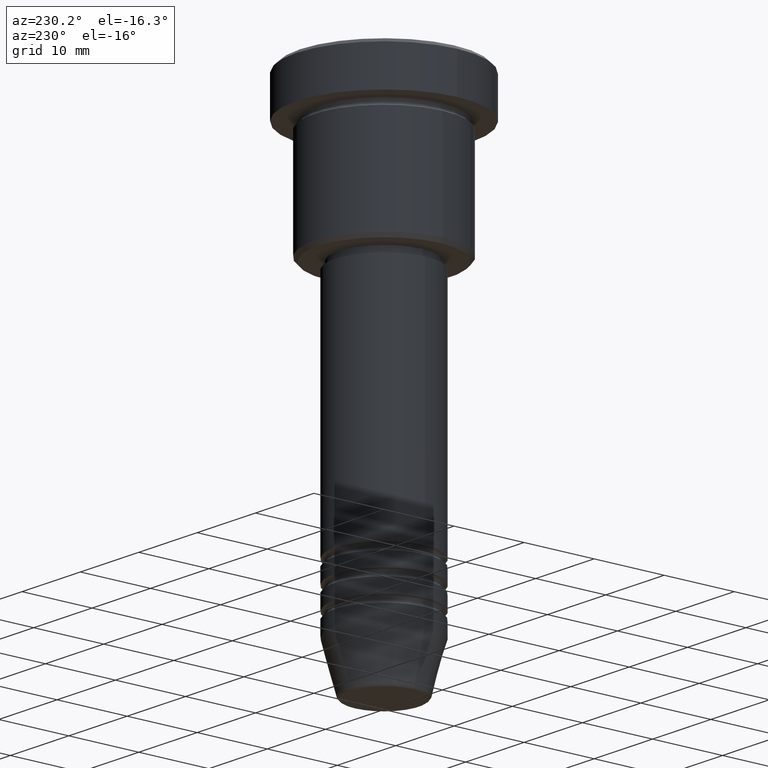
[diagram: clean part render]
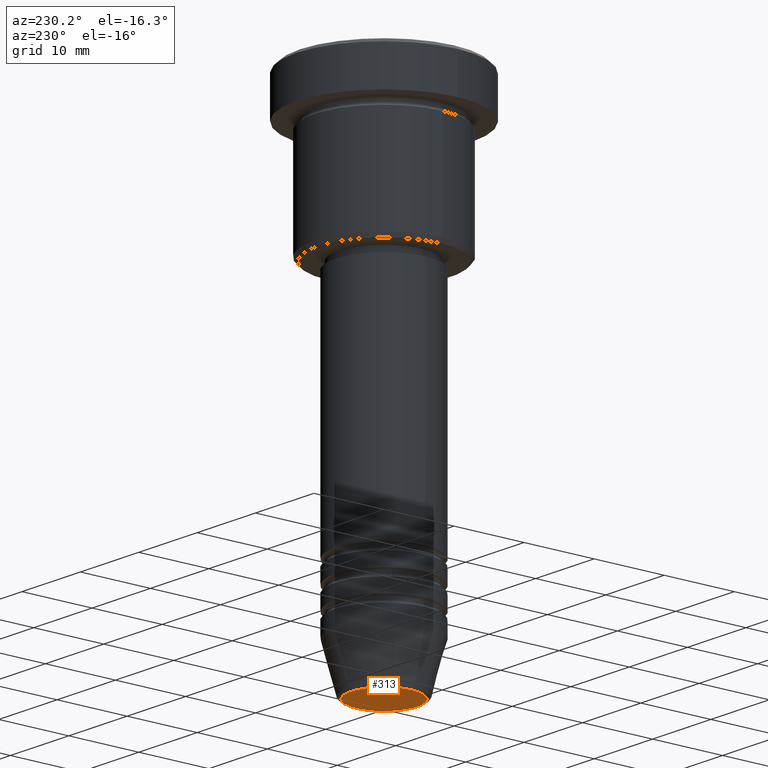
[diagram: same view with one face highlighted and labeled with its STEP entity id]
A machine part, auxiliary view. The second image highlights one B-rep face of the part: STEP entity #313.
In plain terms, the highlighted planar face has unit normal (0, -0, 1).
Its self-contained STEP definition (entity closure, byte-faithful):
#26 = AXIS2_PLACEMENT_3D ( 'NONE', #562, #490, #1030 ) ;
#63 = CIRCLE ( 'NONE', #26, 4.740692158992654726 ) ;
#70 = VERTEX_POINT ( 'NONE', #667 ) ;
#125 = EDGE_CURVE ( 'NONE', #70, #504, #63, .T. ) ;
#200 = CARTESIAN_POINT ( 'NONE',  ( 4.740692158992654726, 0.000000000000000000, -72.00000000000001421 ) ) ;
#214 = CIRCLE ( 'NONE', #914, 4.740692158992654726 ) ;
#233 = DIRECTION ( 'NONE',  ( 0.000000000000000000, 0.000000000000000000, -1.000000000000000000 ) ) ;
#243 = ORIENTED_EDGE ( 'NONE', *, *, #676, .T. ) ;
#313 = ADVANCED_FACE ( 'NONE', ( #793 ), #587, .F. ) ;
#424 = DIRECTION ( 'NONE',  ( 1.000000000000000000, 0.000000000000000000, 0.000000000000000000 ) ) ;
#490 = DIRECTION ( 'NONE',  ( 0.000000000000000000, 0.000000000000000000, -1.000000000000000000 ) ) ;
#504 = VERTEX_POINT ( 'NONE', #200 ) ;
#519 = EDGE_LOOP ( 'NONE', ( #243, #780 ) ) ;
#562 = CARTESIAN_POINT ( 'NONE',  ( 0.000000000000000000, 0.000000000000000000, -72.00000000000001421 ) ) ;
#587 = PLANE ( 'NONE',  #779 ) ;
#667 = CARTESIAN_POINT ( 'NONE',  ( -4.740692158992654726, 6.101402971097975816E-16, -72.00000000000001421 ) ) ;
#676 = EDGE_CURVE ( 'NONE', #504, #70, #214, .T. ) ;
#687 = CARTESIAN_POINT ( 'NONE',  ( 0.000000000000000000, 0.000000000000000000, -72.00000000000001421 ) ) ;
#774 = DIRECTION ( 'NONE',  ( 1.000000000000000000, 0.000000000000000000, 0.000000000000000000 ) ) ;
#779 = AXIS2_PLACEMENT_3D ( 'NONE', #1153, #1138, #774 ) ;
#780 = ORIENTED_EDGE ( 'NONE', *, *, #125, .T. ) ;
#793 = FACE_OUTER_BOUND ( 'NONE', #519, .T. ) ;
#914 = AXIS2_PLACEMENT_3D ( 'NONE', #687, #233, #424 ) ;
#1030 = DIRECTION ( 'NONE',  ( 1.000000000000000000, 0.000000000000000000, 0.000000000000000000 ) ) ;
#1138 = DIRECTION ( 'NONE',  ( 0.000000000000000000, -0.000000000000000000, 1.000000000000000000 ) ) ;
#1153 = CARTESIAN_POINT ( 'NONE',  ( 0.000000000000000000, 0.000000000000000000, -72.00000000000001421 ) ) ;